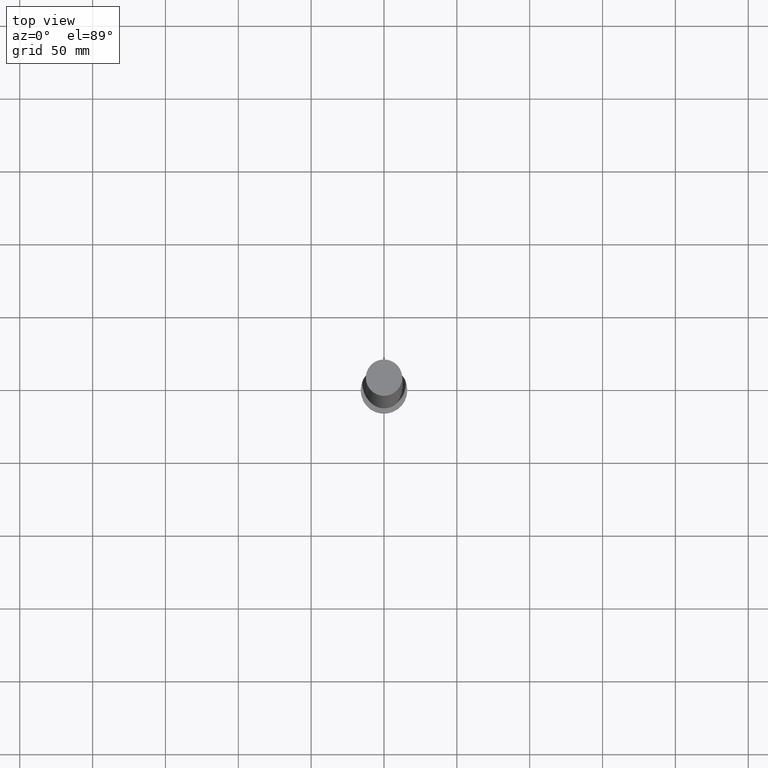
[diagram: clean part render]
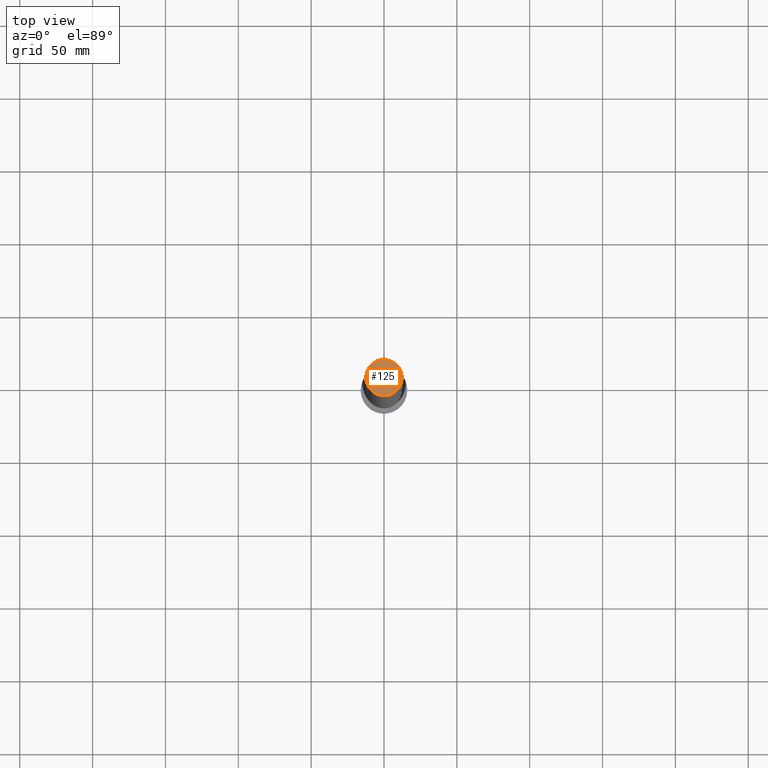
[diagram: same view with one face highlighted and labeled with its STEP entity id]
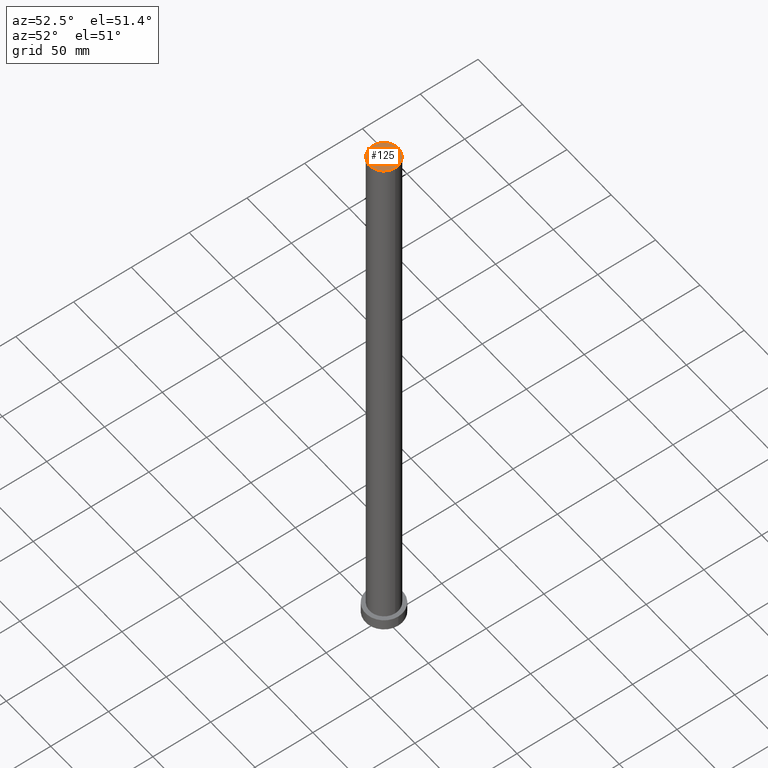
[diagram: same view with one face highlighted and labeled with its STEP entity id]
A machine part, top view. The second image highlights one B-rep face of the part: STEP entity #125.
A second angle (auxiliary view) of the same face is appended — the face is thin or edge-on in the first view.
In plain terms, the highlighted planar face has unit normal (0, 0, 1).
Its self-contained STEP definition (entity closure, byte-faithful):
#18 = DIRECTION ( 'NONE',  ( 0.000000000000000000, 0.000000000000000000, 1.000000000000000000 ) ) ;
#25 = DIRECTION ( 'NONE',  ( 1.000000000000000000, 0.000000000000000000, -0.000000000000000000 ) ) ;
#32 = ORIENTED_EDGE ( 'NONE', *, *, #121, .T. ) ;
#42 = PLANE ( 'NONE',  #112 ) ;
#43 = AXIS2_PLACEMENT_3D ( 'NONE', #143, #197, #233 ) ;
#80 = AXIS2_PLACEMENT_3D ( 'NONE', #162, #195, #230 ) ;
#81 = EDGE_LOOP ( 'NONE', ( #32, #200 ) ) ;
#105 = FACE_OUTER_BOUND ( 'NONE', #81, .T. ) ;
#107 = CIRCLE ( 'NONE', #43, 12.50000000000000000 ) ;
#110 = CARTESIAN_POINT ( 'NONE',  ( 12.50000000000000000, 1.530808498934191521E-15, 500.0000000000000000 ) ) ;
#112 = AXIS2_PLACEMENT_3D ( 'NONE', #196, #18, #25 ) ;
#121 = EDGE_CURVE ( 'NONE', #148, #152, #160, .T. ) ;
#125 = ADVANCED_FACE ( 'NONE', ( #105 ), #42, .T. ) ;
#143 = CARTESIAN_POINT ( 'NONE',  ( 0.000000000000000000, 0.000000000000000000, 500.0000000000000000 ) ) ;
#148 = VERTEX_POINT ( 'NONE', #159 ) ;
#152 = VERTEX_POINT ( 'NONE', #110 ) ;
#159 = CARTESIAN_POINT ( 'NONE',  ( -12.50000000000000000, 0.000000000000000000, 500.0000000000000000 ) ) ;
#160 = CIRCLE ( 'NONE', #80, 12.50000000000000000 ) ;
#161 = EDGE_CURVE ( 'NONE', #152, #148, #107, .T. ) ;
#162 = CARTESIAN_POINT ( 'NONE',  ( 0.000000000000000000, 0.000000000000000000, 500.0000000000000000 ) ) ;
#195 = DIRECTION ( 'NONE',  ( 0.000000000000000000, 0.000000000000000000, 1.000000000000000000 ) ) ;
#196 = CARTESIAN_POINT ( 'NONE',  ( 0.000000000000000000, 0.000000000000000000, 500.0000000000000000 ) ) ;
#197 = DIRECTION ( 'NONE',  ( 0.000000000000000000, 0.000000000000000000, 1.000000000000000000 ) ) ;
#200 = ORIENTED_EDGE ( 'NONE', *, *, #161, .T. ) ;
#230 = DIRECTION ( 'NONE',  ( 1.000000000000000000, 0.000000000000000000, 0.000000000000000000 ) ) ;
#233 = DIRECTION ( 'NONE',  ( 1.000000000000000000, 0.000000000000000000, 0.000000000000000000 ) ) ;